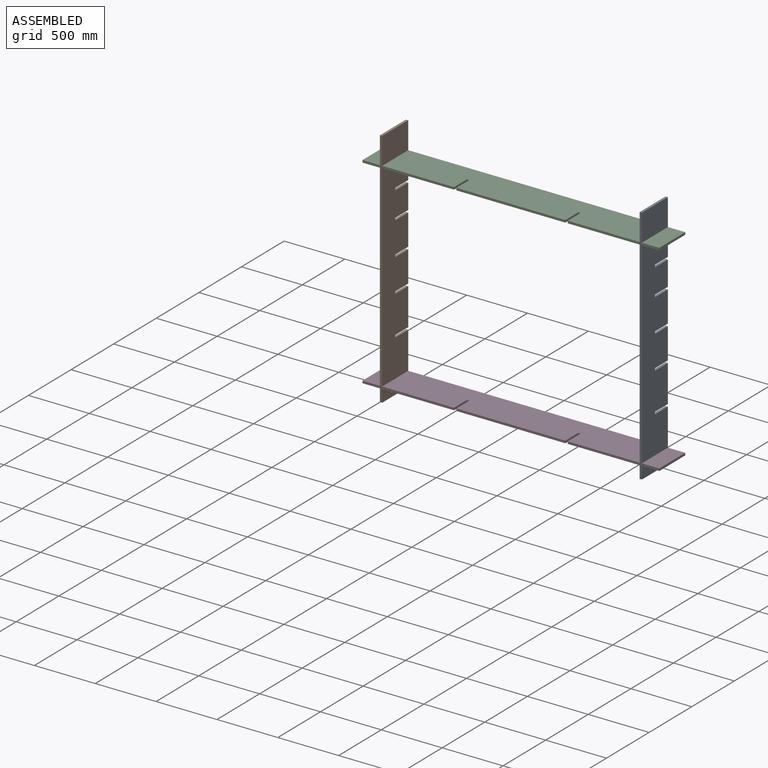
[diagram: assembled view]
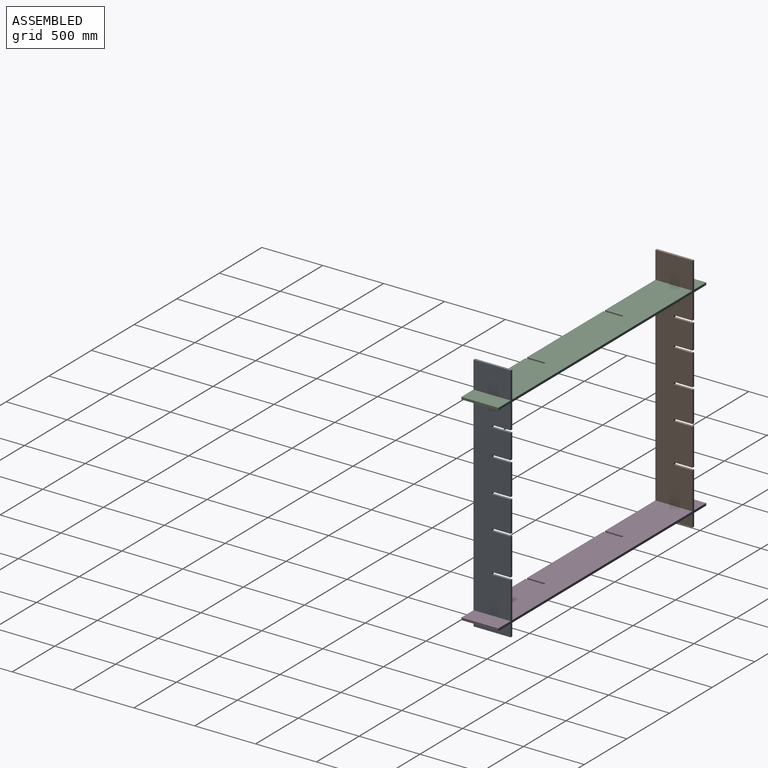
[diagram: assembled view, second angle]
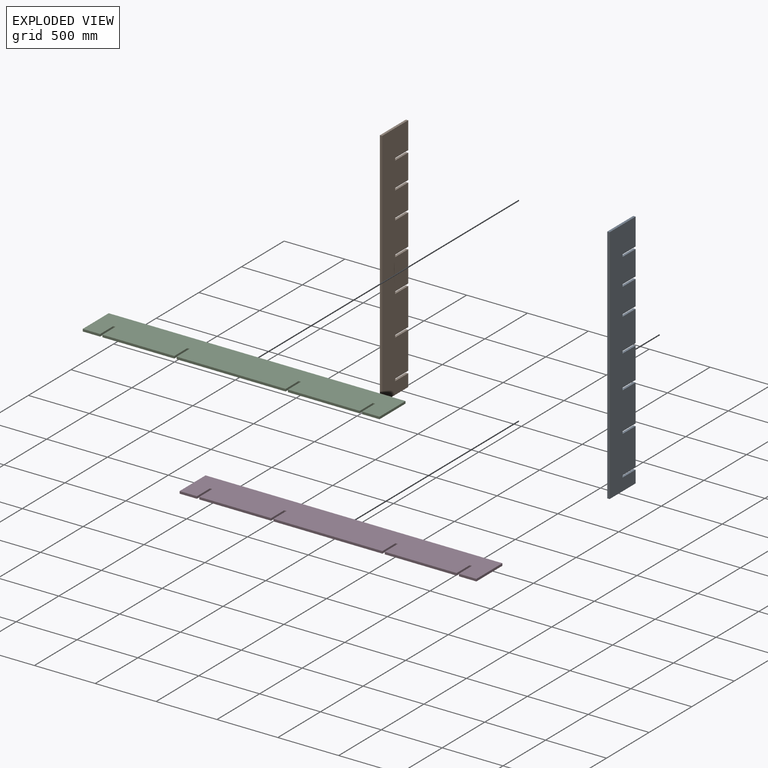
[diagram: exploded view]
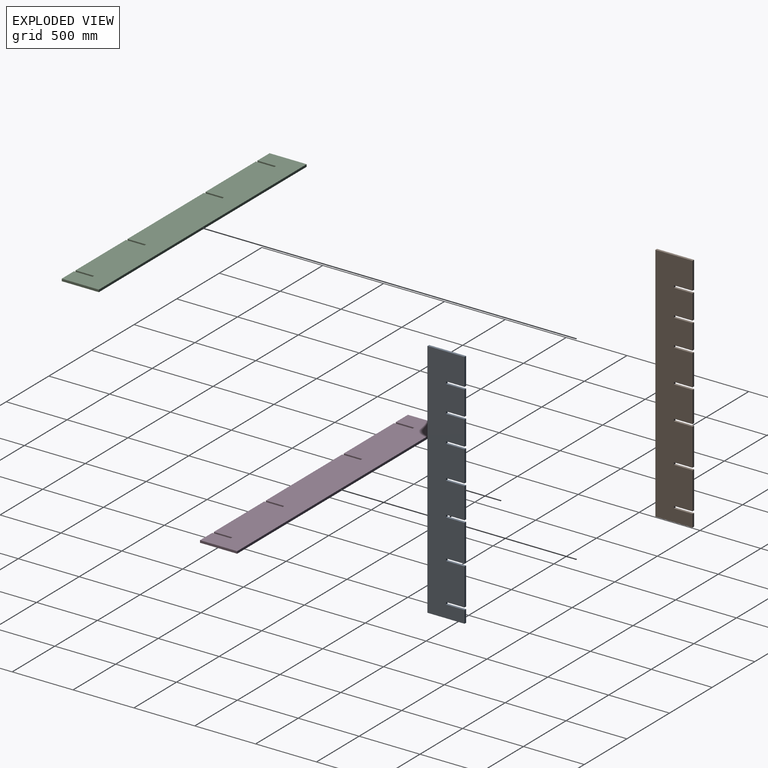
[diagram: exploded view, second angle]
ASSEMBLY  parts=4 mates=3
PART A: 34 faces, bbox 19.1x304.8x1981.2 mm
  f0: plane 152.4x19.05mm, normal (0,0,-1), area 2903.2mm2, adj f1,f31,f32,f33
  f1: plane 222.25x19.05mm, normal (0,1,0), area 4233.9mm2, adj f0,f2,f32,f33
  f2: plane 304.8x19.05mm, normal (0,0,1), area 5806.4mm2, adj f1,f3,f32,f33
  f3: plane 1981.2x19.05mm, normal (0,-1,0), area 37741.9mm2, adj f2,f4,f32,f33
  f4: plane 304.8x19.05mm, normal (0,0,-1), area 5806.4mm2, adj f3,f5,f32,f33
  f5: plane 101.6x19.05mm, normal (0,1,0), area 1935.5mm2, adj f4,f6,f32,f33
  f6: plane 152.4x19.05mm, normal (0,0,1), area 2903.2mm2, adj f5,f7,f32,f33
  f7: plane 19.05x19.05mm, normal (0,1,0), area 362.9mm2, adj f6,f8,f32,f33
  f8: plane 152.4x19.05mm, normal (0,0,-1), area 2903.2mm2, adj f7,f9,f32,f33
  f9: plane 304.8x19.05mm, normal (0,1,0), area 5806.4mm2, adj f8,f10,f32,f33
  f10: plane 152.4x19.05mm, normal (0,0,1), area 2903.2mm2, adj f9,f11,f32,f33
  f11: plane 19.05x19.05mm, normal (0,1,0), area 362.9mm2, adj f10,f12,f32,f33
  f12: plane 152.4x19.05mm, normal (0,0,-1), area 2903.2mm2, adj f11,f13,f32,f33
  f13: plane 304.8x19.05mm, normal (0,1,0), area 5806.4mm2, adj f12,f14,f32,f33
  f14: plane 152.4x19.05mm, normal (0,0,1), area 2903.2mm2, adj f13,f15,f32,f33
  f15: plane 19.05x19.05mm, normal (0,1,0), area 362.9mm2, adj f14,f16,f32,f33
  f16: plane 152.4x19.05mm, normal (0,0,-1), area 2903.2mm2, adj f15,f17,f32,f33
  f17: plane 254x19.05mm, normal (0,1,0), area 4838.7mm2, adj f16,f18,f32,f33
  f18: plane 152.4x19.05mm, normal (0,0,1), area 2903.2mm2, adj f17,f19,f32,f33
  f19: plane 19.05x19.05mm, normal (0,1,0), area 362.9mm2, adj f18,f20,f32,f33
  f20: plane 152.4x19.05mm, normal (0,0,-1), area 2903.2mm2, adj f19,f21,f32,f33
  f21: plane 254x19.05mm, normal (0,1,0), area 4838.7mm2, adj f20,f22,f32,f33
  f22: plane 152.4x19.05mm, normal (0,0,1), area 2903.2mm2, adj f21,f23,f32,f33
  f23: plane 19.05x19.05mm, normal (0,1,0), area 362.9mm2, adj f22,f24,f32,f33
  f24: plane 152.4x19.05mm, normal (0,0,-1), area 2903.2mm2, adj f23,f25,f32,f33
  f25: plane 203.2x19.05mm, normal (0,1,0), area 3871mm2, adj f24,f26,f32,f33
  f26: plane 152.4x19.05mm, normal (0,0,1), area 2903.2mm2, adj f25,f27,f32,f33
  f27: plane 19.05x19.05mm, normal (0,1,0), area 362.9mm2, adj f26,f28,f32,f33
  f28: plane 152.4x19.05mm, normal (0,0,-1), area 2903.2mm2, adj f27,f29,f32,f33
  f29: plane 203.2x19.05mm, normal (0,1,0), area 3871mm2, adj f28,f30,f32,f33
  f30: plane 152.4x19.05mm, normal (0,0,1), area 2903.2mm2, adj f29,f31,f32,f33
  f31: plane 19.05x19.05mm, normal (0,1,0), area 362.9mm2, adj f0,f30,f32,f33
  f32: plane 1981.2x304.8mm, normal (1,0,0), area 583547.2mm2, adj f0,f1,f2,f3,f4,f5,f6,f7
  f33: plane 1981.2x304.8mm, normal (-1,0,0), area 583547.2mm2, adj f0,f1,f2,f3,f4,f5,f6,f7
PART B: same geometry as A
PART C: 22 faces, bbox 2438.4x304.8x19.1 mm
  f0: plane 152.4x19.05mm, normal (-1,0,0), area 2903.2mm2, adj f1,f19,f20,f21
  f1: plane 590.55x19.05mm, normal (0,-1,0), area 11250mm2, adj f0,f2,f20,f21
  f2: plane 152.4x19.05mm, normal (1,0,0), area 2903.2mm2, adj f1,f3,f20,f21
  f3: plane 19.05x19.05mm, normal (0,-1,0), area 362.9mm2, adj f2,f4,f20,f21
  f4: plane 152.4x19.05mm, normal (-1,0,0), area 2903.2mm2, adj f3,f5,f20,f21
  f5: plane 142.88x19.05mm, normal (0,-1,0), area 2721.8mm2, adj f4,f6,f20,f21
  f6: plane 304.8x19.05mm, normal (1,0,0), area 5806.4mm2, adj f5,f7,f20,f21
  f7: plane 2438.4x19.05mm, normal (0,1,0), area 46451.5mm2, adj f6,f8,f20,f21
  f8: plane 304.8x19.05mm, normal (-1,0,0), area 5806.4mm2, adj f7,f9,f20,f21
  f9: plane 142.88x19.05mm, normal (0,-1,0), area 2721.8mm2, adj f8,f10,f20,f21
  f10: plane 152.4x19.05mm, normal (1,0,0), area 2903.2mm2, adj f9,f11,f20,f21
  f11: plane 19.05x19.05mm, normal (0,-1,0), area 362.9mm2, adj f10,f12,f20,f21
  f12: plane 152.4x19.05mm, normal (-1,0,0), area 2903.2mm2, adj f11,f13,f20,f21
  f13: plane 590.55x19.05mm, normal (0,-1,0), area 11250mm2, adj f12,f14,f20,f21
  f14: plane 152.4x19.05mm, normal (1,0,0), area 2903.2mm2, adj f13,f15,f20,f21
  f15: plane 19.05x19.05mm, normal (0,-1,0), area 362.9mm2, adj f14,f16,f20,f21
  f16: plane 152.4x19.05mm, normal (-1,0,0), area 2903.2mm2, adj f15,f17,f20,f21
  f17: plane 895.35x19.05mm, normal (0,-1,0), area 17056.4mm2, adj f16,f18,f20,f21
  f18: plane 152.4x19.05mm, normal (1,0,0), area 2903.2mm2, adj f17,f19,f20,f21
  f19: plane 19.05x19.05mm, normal (0,-1,0), area 362.9mm2, adj f0,f18,f20,f21
  f20: plane 2438.4x304.8mm, normal (0,0,1), area 731611.4mm2, adj f0,f1,f2,f3,f4,f5,f6,f7
  f21: plane 2438.4x304.8mm, normal (0,0,-1), area 731611.4mm2, adj f0,f1,f2,f3,f4,f5,f6,f7
PART D: same geometry as C
PLACE A t=(690.68,-192.5,-923.24)mm
PLACE B t=(-1442.92,-192.5,-923.24)mm
PLACE C t=(-1585.8,186.74,816.66)mm
PLACE D t=(-1585.8,186.74,-821.64)mm
MATE fastened A.f7 <-> D.f3  axis (0,1,0) through (700.2,339.14,-812.11)mm
MATE fastened A.f31 <-> C.f3  axis (0,1,0) through (700.2,339.14,826.19)mm
MATE fastened D.f11 <-> B.f7  axis (0,-1,0) through (-1433.4,339.14,-812.11)mm
